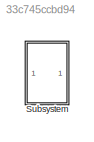
MODEL slx_33c745ccbd94
KIND model
CONFIG AbsTol = auto
CONFIG EnableMultiTasking = off
CONFIG FixedStep = auto
CONFIG MaxStep = auto
CONFIG MinStep = auto
CONFIG RelTol = 1e-3
CONFIG SampleTimeConstraint = Unconstrained
CONFIG SolverName = VariableStepAuto
CONFIG StartTime = 0.0
CONFIG StopTime = 10.0
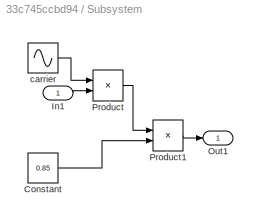
BLOCK [SubSystem] Subsystem
  Ports = [1, 1]
  RequestExecContextInheritance = off
BLOCK [Constant] Subsystem/Constant
  Value = 0.85
BLOCK [Inport] Subsystem/In1
BLOCK [Outport] Subsystem/Out1
BLOCK [Product] Subsystem/Product
  Ports = [2, 1]
BLOCK [Product] Subsystem/Product1
  Ports = [2, 1]
BLOCK [Sin] Subsystem/carrier
  Frequency = 2*pi*500
  Phase = pi/2
  Ports = [0, 1]
  SampleTime = 0.00001
LINE Subsystem/Constant:1 -> Subsystem/Product1:2
LINE Subsystem/In1:1 -> Subsystem/Product:2
LINE Subsystem/Product1:1 -> Subsystem/Out1:1
LINE Subsystem/Product:1 -> Subsystem/Product1:1
LINE Subsystem/carrier:1 -> Subsystem/Product:1
